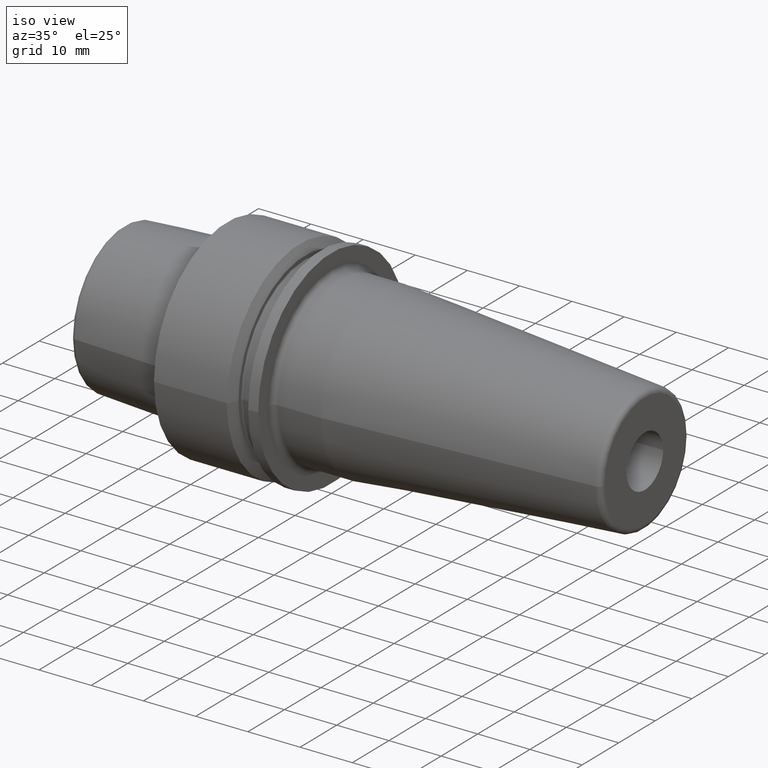
[diagram: clean part render]
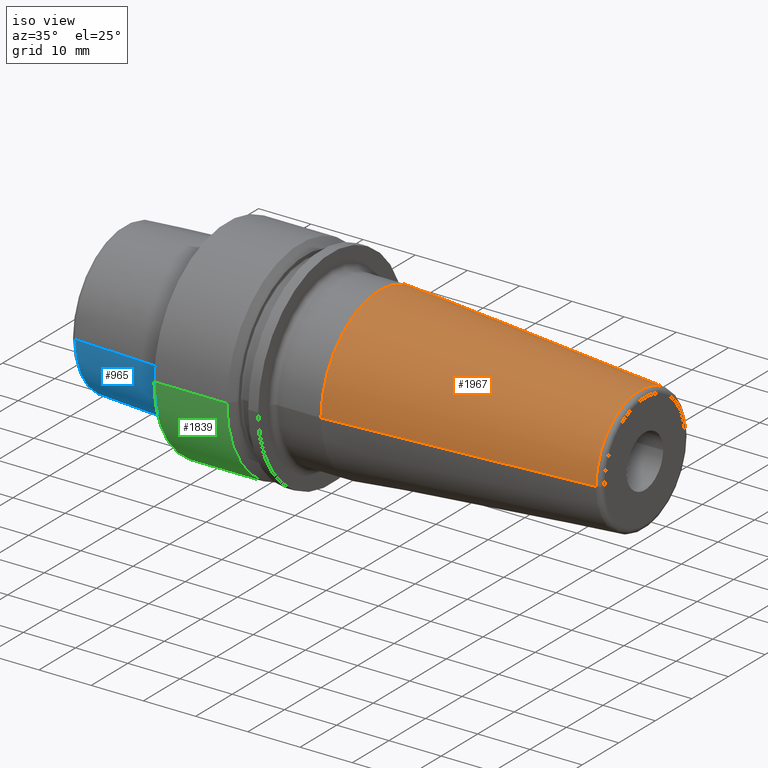
[diagram: same view with three faces highlighted in distinct colors, each labeled with its STEP entity id]
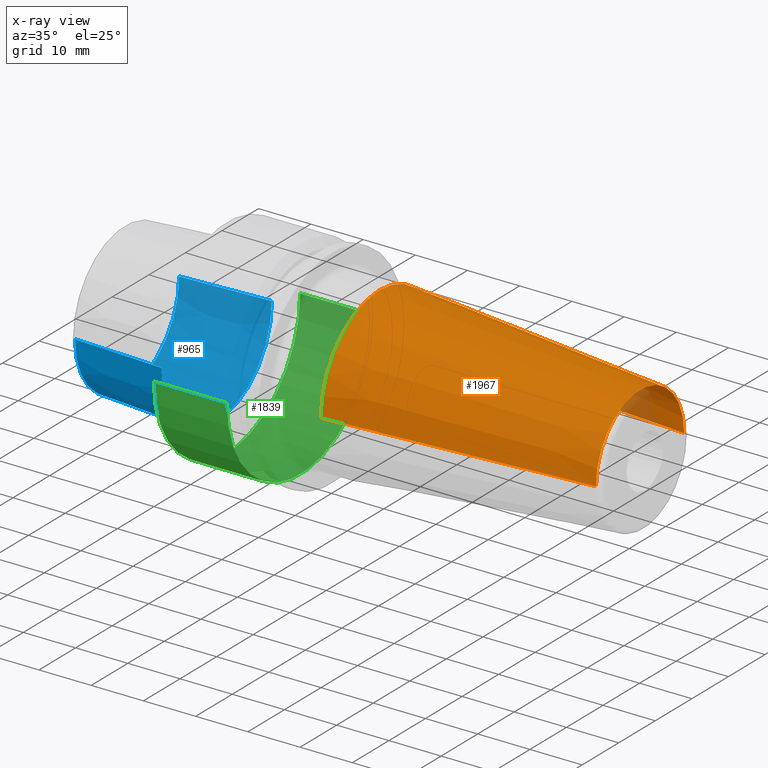
[diagram: x-ray of the same camera — body ghosted, the three highlighted faces saturated]
A machine part, iso view with three faces highlighted in distinct colors.
The next image is the same camera in x-ray (body ghosted, the three faces saturated) — at least one of them is partly hidden behind the body in this view.
Their STEP definitions:

[orange] entity #1967 — the highlighted conical surface has half-angle 4.5 deg.
#647=CARTESIAN_POINT('',(2.917518105530E1,0.E0,0.E0));
#648=DIRECTION('',(1.E0,0.E0,0.E0));
#649=DIRECTION('',(0.E0,1.E0,0.E0));
#650=AXIS2_PLACEMENT_3D('',#647,#648,#649);
#675=DIRECTION('',(-9.969173337331E-1,7.845909572785E-2,1.318021551371E-14));
#676=VECTOR('',#675,5.005758888107E1);
#677=CARTESIAN_POINT('',(7.907845909573E1,1.207252684207E1,
-6.578103746704E-13));
#678=LINE('',#677,#676);
#679=DIRECTION('',(-9.969173337331E-1,-7.845909572785E-2,-1.327998361212E-14));
#680=VECTOR('',#679,5.005758888107E1);
#681=CARTESIAN_POINT('',(7.907845909573E1,-1.207252684207E1,
6.628045251242E-13));
#682=LINE('',#681,#680);
#693=CARTESIAN_POINT('',(7.907845909573E1,0.E0,0.E0));
#694=DIRECTION('',(-1.E0,0.E0,0.E0));
#695=DIRECTION('',(0.E0,-1.E0,0.E0));
#696=AXIS2_PLACEMENT_3D('',#693,#694,#695);
#888=CARTESIAN_POINT('',(2.917518105530E1,1.6E1,0.E0));
#889=CARTESIAN_POINT('',(2.917518105530E1,-1.6E1,0.E0));
#890=VERTEX_POINT('',#888);
#891=VERTEX_POINT('',#889);
#900=CARTESIAN_POINT('',(7.907845909573E1,1.207252684207E1,0.E0));
#901=CARTESIAN_POINT('',(7.907845909573E1,-1.207252684207E1,0.E0));
#902=VERTEX_POINT('',#900);
#903=VERTEX_POINT('',#901);
#1956=CARTESIAN_POINT('',(5.412682007551E1,0.E0,0.E0));
#1957=DIRECTION('',(-1.E0,0.E0,0.E0));
#1958=DIRECTION('',(0.E0,1.E0,0.E0));
#1959=AXIS2_PLACEMENT_3D('',#1956,#1957,#1958);
#1960=CONICAL_SURFACE('',#1959,1.403626342104E1,4.5E0);
#1961=ORIENTED_EDGE('',*,*,#1947,.F.);
#1962=ORIENTED_EDGE('',*,*,#1922,.T.);
#1963=ORIENTED_EDGE('',*,*,#1892,.F.);
#1964=ORIENTED_EDGE('',*,*,#1919,.F.);
#1965=EDGE_LOOP('',(#1961,#1962,#1963,#1964));
#1966=FACE_OUTER_BOUND('',#1965,.F.);
#1967=ADVANCED_FACE('',(#1966),#1960,.T.);
#651=CIRCLE('',#650,1.6E1);
#697=CIRCLE('',#696,1.207252684207E1);
#1892=EDGE_CURVE('',#890,#891,#651,.T.);
#1919=EDGE_CURVE('',#902,#890,#678,.T.);
#1922=EDGE_CURVE('',#903,#891,#682,.T.);
#1947=EDGE_CURVE('',#903,#902,#697,.T.);

[blue] entity #965 — the highlighted conical surface has half-angle 2.868 deg.
#25=CARTESIAN_POINT('',(-2.E0,0.E0,0.E0));
#26=DIRECTION('',(1.E0,0.E0,0.E0));
#27=DIRECTION('',(0.E0,-1.E0,0.E0));
#28=AXIS2_PLACEMENT_3D('',#25,#26,#27);
#30=DIRECTION('',(-9.987473526255E-1,-5.003724236654E-2,0.E0));
#31=VECTOR('',#30,1.716152713580E1);
#32=CARTESIAN_POINT('',(-2.E0,1.51037E1,0.E0));
#33=LINE('',#32,#31);
#34=DIRECTION('',(-9.987473526255E-1,5.003724236654E-2,0.E0));
#35=VECTOR('',#34,1.716152713580E1);
#36=CARTESIAN_POINT('',(-2.E0,-1.51037E1,0.E0));
#37=LINE('',#36,#35);
#48=CARTESIAN_POINT('',(-1.914002979389E1,0.E0,0.E0));
#49=DIRECTION('',(-1.E0,0.E0,0.E0));
#50=DIRECTION('',(0.E0,1.E0,0.E0));
#51=AXIS2_PLACEMENT_3D('',#48,#49,#50);
#752=CARTESIAN_POINT('',(-2.E0,1.51037E1,0.E0));
#753=CARTESIAN_POINT('',(-2.E0,-1.51037E1,0.E0));
#754=VERTEX_POINT('',#752);
#755=VERTEX_POINT('',#753);
#756=CARTESIAN_POINT('',(-1.914002979389E1,1.424498450733E1,0.E0));
#757=VERTEX_POINT('',#756);
#758=CARTESIAN_POINT('',(-1.914002979389E1,-1.424498450733E1,0.E0));
#759=VERTEX_POINT('',#758);
#953=CARTESIAN_POINT('',(-1.057001489695E1,0.E0,0.E0));
#954=DIRECTION('',(1.E0,0.E0,0.E0));
#955=DIRECTION('',(0.E0,-1.E0,0.E0));
#956=AXIS2_PLACEMENT_3D('',#953,#954,#955);
#957=CONICAL_SURFACE('',#956,1.467434225366E1,2.868120487315E0);
#958=ORIENTED_EDGE('',*,*,#944,.T.);
#959=ORIENTED_EDGE('',*,*,#919,.T.);
#961=ORIENTED_EDGE('',*,*,#960,.T.);
#962=ORIENTED_EDGE('',*,*,#915,.F.);
#963=EDGE_LOOP('',(#958,#959,#961,#962));
#964=FACE_OUTER_BOUND('',#963,.F.);
#965=ADVANCED_FACE('',(#964),#957,.T.);
#29=CIRCLE('',#28,1.51037E1);
#52=CIRCLE('',#51,1.424498450733E1);
#915=EDGE_CURVE('',#755,#759,#37,.T.);
#919=EDGE_CURVE('',#754,#757,#33,.T.);
#944=EDGE_CURVE('',#755,#754,#29,.T.);
#960=EDGE_CURVE('',#757,#759,#52,.T.);

[green] entity #1839 — the highlighted cylindrical surface (partial cylindrical patch) has radius 20 mm, axis along (1, 0, 0).
#457=CARTESIAN_POINT('',(-1.065814103640E-14,0.E0,0.E0));
#458=DIRECTION('',(-1.E0,0.E0,0.E0));
#459=DIRECTION('',(0.E0,1.E0,0.E0));
#460=AXIS2_PLACEMENT_3D('',#457,#458,#459);
#609=CARTESIAN_POINT('',(1.396484030111E1,0.E0,0.E0));
#610=DIRECTION('',(1.E0,0.E0,0.E0));
#611=DIRECTION('',(0.E0,-1.E0,0.E0));
#612=AXIS2_PLACEMENT_3D('',#609,#610,#611);
#614=DIRECTION('',(-1.E0,0.E0,0.E0));
#615=VECTOR('',#614,1.396484030111E1);
#616=CARTESIAN_POINT('',(1.396484030111E1,2.E1,0.E0));
#617=LINE('',#616,#615);
#618=DIRECTION('',(-1.E0,0.E0,0.E0));
#619=VECTOR('',#618,1.396484030111E1);
#620=CARTESIAN_POINT('',(1.396484030111E1,-2.E1,0.E0));
#621=LINE('',#620,#619);
#802=CARTESIAN_POINT('',(1.396484030111E1,2.E1,0.E0));
#803=VERTEX_POINT('',#802);
#806=CARTESIAN_POINT('',(1.396484030111E1,-2.E1,0.E0));
#807=VERTEX_POINT('',#806);
#812=CARTESIAN_POINT('',(-1.065814103640E-14,2.E1,0.E0));
#813=CARTESIAN_POINT('',(-1.065814103640E-14,-2.E1,0.E0));
#814=VERTEX_POINT('',#812);
#815=VERTEX_POINT('',#813);
#1828=CARTESIAN_POINT('',(-2.18925E1,0.E0,0.E0));
#1829=DIRECTION('',(1.E0,0.E0,0.E0));
#1830=DIRECTION('',(0.E0,-1.E0,0.E0));
#1831=AXIS2_PLACEMENT_3D('',#1828,#1829,#1830);
#1832=CYLINDRICAL_SURFACE('',#1831,2.E1);
#1833=ORIENTED_EDGE('',*,*,#1795,.T.);
#1834=ORIENTED_EDGE('',*,*,#1638,.T.);
#1835=ORIENTED_EDGE('',*,*,#1603,.T.);
#1836=ORIENTED_EDGE('',*,*,#1635,.F.);
#1837=EDGE_LOOP('',(#1833,#1834,#1835,#1836));
#1838=FACE_OUTER_BOUND('',#1837,.F.);
#1839=ADVANCED_FACE('',(#1838),#1832,.T.);
#461=CIRCLE('',#460,2.E1);
#613=CIRCLE('',#612,2.E1);
#1603=EDGE_CURVE('',#814,#815,#461,.T.);
#1635=EDGE_CURVE('',#807,#815,#621,.T.);
#1638=EDGE_CURVE('',#803,#814,#617,.T.);
#1795=EDGE_CURVE('',#807,#803,#613,.T.);